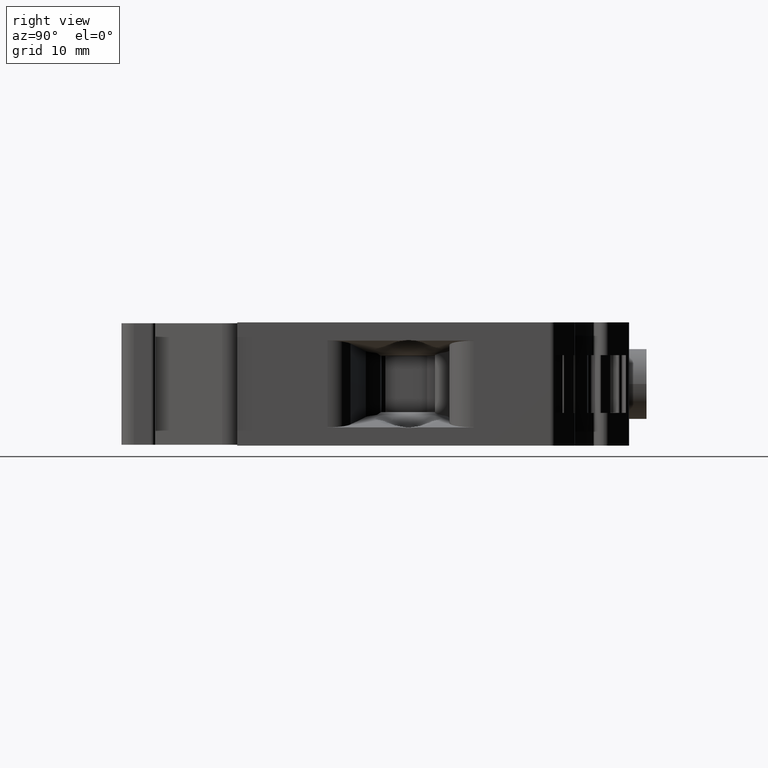
[diagram: clean part render]
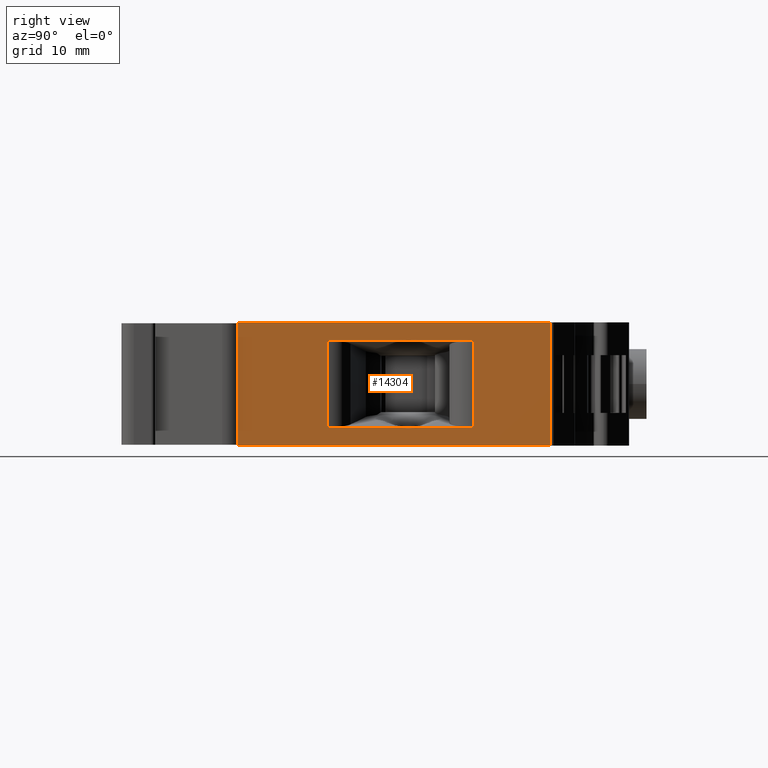
[diagram: same view with one face highlighted and labeled with its STEP entity id]
A machine part, right view. The second image highlights one B-rep face of the part: STEP entity #14304.
In plain terms, the highlighted planar face has unit normal (-1, 0, 0).
Its self-contained STEP definition (entity closure, byte-faithful):
#12 = EDGE_CURVE ( 'NONE', #8214, #5223, #862, .T. ) ;
#18 = EDGE_CURVE ( 'NONE', #5257, #5506, #847, .T. ) ;
#71 = CARTESIAN_POINT ( 'NONE',  ( 38.43667272264152500, -76.48721880784488300, -99.05621712428889200 ) ) ;
#103 = CARTESIAN_POINT ( 'NONE',  ( 38.43667272263122900, -58.75693856437533200, -109.5341536658698500 ) ) ;
#118 = CARTESIAN_POINT ( 'NONE',  ( 38.43667272264758600, -87.38320129209705600, -96.94730660721299400 ) ) ;
#138 = CARTESIAN_POINT ( 'NONE',  ( 38.43667272263061800, -76.48721880784488300, -109.5341536596334000 ) ) ;
#139 = CARTESIAN_POINT ( 'NONE',  ( 38.43667272264669800, -87.38320129209705600, -96.84730660721318400 ) ) ;
#168 = CARTESIAN_POINT ( 'NONE',  ( 38.43667272262924000, -49.52627389119648900, -111.7430641829503100 ) ) ;
#171 = CARTESIAN_POINT ( 'NONE',  ( 38.43667272264213600, -58.75693856437533200, -99.05621713051509400 ) ) ;
#185 = CARTESIAN_POINT ( 'NONE',  ( 38.43667272263490300, -87.38320129209705600, -111.7430641829508300 ) ) ;
#735 = CARTESIAN_POINT ( 'NONE',  ( 38.43667272211804000, -68.01573026067069300, -109.5341536729088100 ) ) ;
#757 = CARTESIAN_POINT ( 'NONE',  ( 38.43667272263975600, -87.38320129208365500, -111.6451853950825600 ) ) ;
#775 = CARTESIAN_POINT ( 'NONE',  ( 38.43667272212755400, -68.01573026067056600, -99.05621711726023200 ) ) ;
#799 = CARTESIAN_POINT ( 'NONE',  ( 38.43667272211812500, -65.38111280548901000, -109.5341536729089400 ) ) ;
#831 = CARTESIAN_POINT ( 'NONE',  ( 38.43667272212759700, -65.38111280548882600, -99.05621711726023200 ) ) ;
#847 = B_SPLINE_CURVE_WITH_KNOTS ( 'NONE', 3,
 ( #2164, #2183, #2150, #2144, #2182, #2149 ),
 .UNSPECIFIED., .F., .F.,
 ( 4, 2, 4 ),
 ( 0.0000000000000000000, 0.0004968447502951007600, 0.0009936895005902015300 ),
 .UNSPECIFIED. ) ;
#862 = B_SPLINE_CURVE_WITH_KNOTS ( 'NONE', 3,
 ( #2119, #2132, #2125, #2134, #2109, #2092, #2135, #2100, #2095, #2136 ),
 .UNSPECIFIED., .F., .F.,
 ( 4, 3, 3, 4 ),
 ( 6.938893903907228400E-017, 0.0003879735545500761100, 0.0006907775027674054600, 0.0009939116172367232000 ),
 .UNSPECIFIED. ) ;
#1496 = FACE_OUTER_BOUND ( 'NONE', #10390, .T. ) ;
#1544 = CARTESIAN_POINT ( 'NONE',  ( 38.43667272263370900, -145.8095721211545900, -104.2951853950827000 ) ) ;
#1566 = PLANE ( 'NONE',  #7005 ) ;
#1568 = DIRECTION ( 'NONE',  ( -1.000000000000000000, 3.416319012622749800E-014, 1.041296064131780700E-012 ) ) ;
#1575 = FACE_BOUND ( 'NONE', #10406, .T. ) ;
#1584 = DIRECTION ( 'NONE',  ( 1.041296064131780700E-012, 0.0000000000000000000, 1.000000000000000000 ) ) ;
#2092 = CARTESIAN_POINT ( 'NONE',  ( 38.43667272264181600, -67.61188055256357600, -99.04520399348122300 ) ) ;
#2095 = CARTESIAN_POINT ( 'NONE',  ( 38.43667272264180200, -67.91470133025465800, -99.05620878832232300 ) ) ;
#2100 = CARTESIAN_POINT ( 'NONE',  ( 38.43667272264180200, -67.81365728805107600, -99.05373817760812500 ) ) ;
#2109 = CARTESIAN_POINT ( 'NONE',  ( 38.43667272264185200, -67.51111747136447100, -99.03912661771674700 ) ) ;
#2119 = CARTESIAN_POINT ( 'NONE',  ( 38.43667312166780200, -67.02339730214423200, -99.00515785714438300 ) ) ;
#2125 = CARTESIAN_POINT ( 'NONE',  ( 38.43667272264188000, -67.28140248388771700, -99.02339958798435800 ) ) ;
#2132 = CARTESIAN_POINT ( 'NONE',  ( 38.43667272264185200, -67.15247861638997100, -99.01308536090948600 ) ) ;
#2134 = CARTESIAN_POINT ( 'NONE',  ( 38.43667272264186600, -67.41042497757135300, -99.03223288448188600 ) ) ;
#2135 = CARTESIAN_POINT ( 'NONE',  ( 38.43667272264180900, -67.71271860068083000, -99.04946895726682500 ) ) ;
#2136 = CARTESIAN_POINT ( 'NONE',  ( 38.43667272212755400, -68.01573026067056600, -99.05621711726023200 ) ) ;
#2144 = CARTESIAN_POINT ( 'NONE',  ( 38.43667272264193000, -66.04299980945084800, -99.02917394507817100 ) ) ;
#2149 = CARTESIAN_POINT ( 'NONE',  ( 38.43667311491969900, -66.37344575109710800, -99.00515785793783200 ) ) ;
#2150 = CARTESIAN_POINT ( 'NONE',  ( 38.43667272264193000, -65.71232074972803600, -99.04946547917093400 ) ) ;
#2164 = CARTESIAN_POINT ( 'NONE',  ( 38.43667272212759700, -65.38111280548882600, -99.05621711726023200 ) ) ;
#2182 = CARTESIAN_POINT ( 'NONE',  ( 38.43667272264194400, -66.20809607022414400, -99.01531279290577500 ) ) ;
#2183 = CARTESIAN_POINT ( 'NONE',  ( 38.43667272264188000, -65.54679083841767800, -99.05620346333327600 ) ) ;
#2293 = DIRECTION ( 'NONE',  ( -1.041296064131780700E-012, -0.0000000000000000000, -1.000000000000000000 ) ) ;
#2323 = LINE ( 'NONE', #2324, #13660 ) ;
#2324 = CARTESIAN_POINT ( 'NONE',  ( 38.43667272263699900, -49.52627389119648900, -104.2951853950827000 ) ) ;
#2458 = LINE ( 'NONE', #2489, #12823 ) ;
#2478 = DIRECTION ( 'NONE',  ( -3.416319012622749800E-014, -1.000000000000000000, -2.859497606515931200E-030 ) ) ;
#2489 = CARTESIAN_POINT ( 'NONE',  ( 38.43667272264146800, -145.8095721211545900, -96.84730660721318400 ) ) ;
#2504 = DIRECTION ( 'NONE',  ( -3.416319012624204500E-014, -1.000000000000000000, -1.396799342856360700E-014 ) ) ;
#2509 = LINE ( 'NONE', #2514, #12852 ) ;
#2514 = CARTESIAN_POINT ( 'NONE',  ( 38.43667272262595000, -145.8095721211546200, -111.7430641829516600 ) ) ;
#2552 = CARTESIAN_POINT ( 'NONE',  ( 38.43667272264669800, -87.38320129209705600, -185.1101459997687200 ) ) ;
#2558 = LINE ( 'NONE', #2552, #12867 ) ;
#2560 = DIRECTION ( 'NONE',  ( -0.0000000000000000000, 0.0000000000000000000, 1.000000000000000000 ) ) ;
#2881 = CARTESIAN_POINT ( 'NONE',  ( 38.43667272263091700, -67.18874698519736900, -109.5750579983166800 ) ) ;
#2884 = CARTESIAN_POINT ( 'NONE',  ( 38.43667312166120800, -67.02339730214495700, -109.5852129330258900 ) ) ;
#2888 = CARTESIAN_POINT ( 'NONE',  ( 38.43667272263088800, -67.85005222558434900, -109.5341673268353600 ) ) ;
#2889 = CARTESIAN_POINT ( 'NONE',  ( 38.43667272263093800, -67.68452231211986700, -109.5409053111772800 ) ) ;
#2897 = CARTESIAN_POINT ( 'NONE',  ( 38.43667272263092400, -67.35384324810212300, -109.5611968457012000 ) ) ;
#2922 = CARTESIAN_POINT ( 'NONE',  ( 38.43667272211804000, -68.01573026067069300, -109.5341536729088100 ) ) ;
#3421 = CARTESIAN_POINT ( 'NONE',  ( 38.43667312166132200, -66.37344576401521600, -109.5852129330259100 ) ) ;
#3461 = CARTESIAN_POINT ( 'NONE',  ( 38.43667312166780200, -67.02339730214423200, -99.00515785714438300 ) ) ;
#3486 = CARTESIAN_POINT ( 'NONE',  ( 38.43667312166120800, -67.02339730214495700, -109.5852129330258900 ) ) ;
#3517 = CARTESIAN_POINT ( 'NONE',  ( 38.43667311491969900, -66.37344575109710800, -99.00515785793783200 ) ) ;
#3574 = CARTESIAN_POINT ( 'NONE',  ( 38.43667312803624000, -66.69842153307989500, -98.99518539509232100 ) ) ;
#3575 = CARTESIAN_POINT ( 'NONE',  ( 38.43667272264475800, -49.52627389119648900, -96.84730660721318400 ) ) ;
#3616 = EDGE_CURVE ( 'NONE', #5470, #5389, #2323, .T. ) ;
#3667 = EDGE_CURVE ( 'NONE', #5470, #5360, #2458, .T. ) ;
#3686 = EDGE_CURVE ( 'NONE', #5389, #5396, #2509, .T. ) ;
#3693 = EDGE_CURVE ( 'NONE', #5347, #5360, #2558, .T. ) ;
#5174 = VERTEX_POINT ( 'NONE', #735 ) ;
#5211 = VERTEX_POINT ( 'NONE', #757 ) ;
#5223 = VERTEX_POINT ( 'NONE', #775 ) ;
#5242 = VERTEX_POINT ( 'NONE', #799 ) ;
#5257 = VERTEX_POINT ( 'NONE', #831 ) ;
#5305 = VERTEX_POINT ( 'NONE', #71 ) ;
#5347 = VERTEX_POINT ( 'NONE', #118 ) ;
#5348 = VERTEX_POINT ( 'NONE', #103 ) ;
#5360 = VERTEX_POINT ( 'NONE', #139 ) ;
#5383 = VERTEX_POINT ( 'NONE', #138 ) ;
#5389 = VERTEX_POINT ( 'NONE', #168 ) ;
#5396 = VERTEX_POINT ( 'NONE', #185 ) ;
#5414 = VERTEX_POINT ( 'NONE', #171 ) ;
#5470 = VERTEX_POINT ( 'NONE', #3575 ) ;
#5492 = VERTEX_POINT ( 'NONE', #3574 ) ;
#5506 = VERTEX_POINT ( 'NONE', #3517 ) ;
#7005 = AXIS2_PLACEMENT_3D ( 'NONE', #1544, #1568, #1584 ) ;
#7387 = AXIS2_PLACEMENT_3D ( 'NONE', #11906, #11903, #11904 ) ;
#7406 = CIRCLE ( 'NONE', #7408, 5.299999999999998900 ) ;
#7408 = AXIS2_PLACEMENT_3D ( 'NONE', #11936, #11944, #11947 ) ;
#7414 = VECTOR ( 'NONE', #11240, 1000.000000000000000 ) ;
#7415 = CIRCLE ( 'NONE', #7387, 5.299999999999998900 ) ;
#7420 = VECTOR ( 'NONE', #11298, 1000.000000000000000 ) ;
#7469 = VECTOR ( 'NONE', #11312, 1000.000000000000000 ) ;
#7475 = VECTOR ( 'NONE', #11279, 1000.000000000000000 ) ;
#7488 = VECTOR ( 'NONE', #11237, 1000.000000000000000 ) ;
#7529 = VECTOR ( 'NONE', #11371, 1000.000000000000000 ) ;
#7590 = VECTOR ( 'NONE', #11414, 1000.000000000000000 ) ;
#7602 = VECTOR ( 'NONE', #11393, 1000.000000000000000 ) ;
#8164 = VERTEX_POINT ( 'NONE', #3421 ) ;
#8214 = VERTEX_POINT ( 'NONE', #3461 ) ;
#8223 = VERTEX_POINT ( 'NONE', #3486 ) ;
#8294 = ORIENTED_EDGE ( 'NONE', *, *, #17372, .F. ) ;
#8295 = ORIENTED_EDGE ( 'NONE', *, *, #3686, .F. ) ;
#8298 = ORIENTED_EDGE ( 'NONE', *, *, #17417, .F. ) ;
#8307 = ORIENTED_EDGE ( 'NONE', *, *, #17383, .F. ) ;
#8309 = ORIENTED_EDGE ( 'NONE', *, *, #17369, .F. ) ;
#8319 = ORIENTED_EDGE ( 'NONE', *, *, #17371, .F. ) ;
#8339 = ORIENTED_EDGE ( 'NONE', *, *, #17414, .F. ) ;
#8340 = ORIENTED_EDGE ( 'NONE', *, *, #3616, .F. ) ;
#8341 = ORIENTED_EDGE ( 'NONE', *, *, #17498, .T. ) ;
#8344 = ORIENTED_EDGE ( 'NONE', *, *, #18, .F. ) ;
#8354 = ORIENTED_EDGE ( 'NONE', *, *, #12, .F. ) ;
#8357 = ORIENTED_EDGE ( 'NONE', *, *, #11681, .T. ) ;
#8360 = ORIENTED_EDGE ( 'NONE', *, *, #17512, .T. ) ;
#8363 = ORIENTED_EDGE ( 'NONE', *, *, #3693, .F. ) ;
#8368 = ORIENTED_EDGE ( 'NONE', *, *, #17730, .F. ) ;
#8371 = ORIENTED_EDGE ( 'NONE', *, *, #17752, .F. ) ;
#8384 = ORIENTED_EDGE ( 'NONE', *, *, #3667, .T. ) ;
#8392 = ORIENTED_EDGE ( 'NONE', *, *, #17403, .F. ) ;
#8401 = ORIENTED_EDGE ( 'NONE', *, *, #17366, .F. ) ;
#10390 = EDGE_LOOP ( 'NONE', ( #8319, #8307, #8295, #8340, #8384, #8363 ) ) ;
#10406 = EDGE_LOOP ( 'NONE', ( #8371, #8298, #8294, #8392, #8354, #8341, #8357, #8344, #8309, #8339, #8401, #8368, #8360 ) ) ;
#11224 = LINE ( 'NONE', #11225, #7414 ) ;
#11225 = CARTESIAN_POINT ( 'NONE',  ( 38.43667272263915900, -145.8095721211545900, -99.05621713000221000 ) ) ;
#11237 = DIRECTION ( 'NONE',  ( 3.416319012622749800E-014, 1.000000000000000000, -3.557399541662640600E-026 ) ) ;
#11238 = LINE ( 'NONE', #11274, #7469 ) ;
#11240 = DIRECTION ( 'NONE',  ( -3.416319012622749800E-014, -1.000000000000000000, 3.557399541662640600E-026 ) ) ;
#11242 = LINE ( 'NONE', #11307, #7475 ) ;
#11252 = CARTESIAN_POINT ( 'NONE',  ( 38.43667272262825200, -145.8095721211545900, -109.5341536726195000 ) ) ;
#11259 = LINE ( 'NONE', #11252, #7488 ) ;
#11274 = CARTESIAN_POINT ( 'NONE',  ( 38.43667272263570600, -87.38320129209705600, -104.2951853950827000 ) ) ;
#11279 = DIRECTION ( 'NONE',  ( -1.041296064131780700E-012, -0.0000000000000000000, -1.000000000000000000 ) ) ;
#11289 = CARTESIAN_POINT ( 'NONE',  ( 38.43667272263490300, -87.38320129209705600, -185.1101459997687200 ) ) ;
#11298 = DIRECTION ( 'NONE',  ( -0.0000000000000000000, 0.0000000000000000000, 1.000000000000000000 ) ) ;
#11307 = CARTESIAN_POINT ( 'NONE',  ( 38.43667272263607500, -76.48721880784488300, -104.2951853950827000 ) ) ;
#11311 = LINE ( 'NONE', #11289, #7420 ) ;
#11312 = DIRECTION ( 'NONE',  ( 1.041296064131780700E-012, 0.0000000000000000000, 1.000000000000000000 ) ) ;
#11360 = LINE ( 'NONE', #11361, #7602 ) ;
#11361 = CARTESIAN_POINT ( 'NONE',  ( 38.43667272263915900, -145.8095721211545900, -99.05621711754945100 ) ) ;
#11365 = LINE ( 'NONE', #11370, #7529 ) ;
#11370 = CARTESIAN_POINT ( 'NONE',  ( 38.43667272263668600, -58.75693856437533200, -104.2951853950827000 ) ) ;
#11371 = DIRECTION ( 'NONE',  ( 1.041296064131780700E-012, 0.0000000000000000000, 1.000000000000000000 ) ) ;
#11393 = DIRECTION ( 'NONE',  ( -3.416319012622749800E-014, -1.000000000000000000, 3.557399541662640600E-026 ) ) ;
#11414 = DIRECTION ( 'NONE',  ( 3.416319012622749800E-014, 1.000000000000000000, -3.557399541662640600E-026 ) ) ;
#11438 = LINE ( 'NONE', #11446, #7590 ) ;
#11446 = CARTESIAN_POINT ( 'NONE',  ( 38.43667272262825200, -145.8095721211545900, -109.5341536601469100 ) ) ;
#11681 = EDGE_CURVE ( 'NONE', #5492, #5506, #13350, .T. ) ;
#11903 = DIRECTION ( 'NONE',  ( -1.000000000000000000, 7.999495554144750400E-027, 4.551851320108999600E-013 ) ) ;
#11904 = DIRECTION ( 'NONE',  ( 4.556103921810784300E-013, 0.0000000000000000000, 1.000000000000000000 ) ) ;
#11906 = CARTESIAN_POINT ( 'NONE',  ( 38.43667312803382400, -66.69842153307989500, -104.2951853950923200 ) ) ;
#11936 = CARTESIAN_POINT ( 'NONE',  ( 38.43667312803034300, -66.69842153307989500, -104.2951853950779900 ) ) ;
#11944 = DIRECTION ( 'NONE',  ( -1.000000000000000000, 0.0000000000000000000, 0.0000000000000000000 ) ) ;
#11947 = DIRECTION ( 'NONE',  ( 0.0000000000000000000, 0.0000000000000000000, 1.000000000000000000 ) ) ;
#12685 = CARTESIAN_POINT ( 'NONE',  ( 38.43667272263091700, -66.24436444976952000, -109.5772854292605000 ) ) ;
#12690 = CARTESIAN_POINT ( 'NONE',  ( 38.43667272263093800, -66.11544058227231300, -109.5669712021779800 ) ) ;
#12706 = CARTESIAN_POINT ( 'NONE',  ( 38.43667272263096600, -65.88572559479577300, -109.5512441724427100 ) ) ;
#12707 = CARTESIAN_POINT ( 'NONE',  ( 38.43667272263097300, -65.78496251359659700, -109.5451667966790400 ) ) ;
#12708 = CARTESIAN_POINT ( 'NONE',  ( 38.43667272263098100, -65.68412446547930000, -109.5409018328952200 ) ) ;
#12709 = CARTESIAN_POINT ( 'NONE',  ( 38.43667272263098800, -65.58318577810884200, -109.5366326125556800 ) ) ;
#12712 = CARTESIAN_POINT ( 'NONE',  ( 38.43667312166132200, -66.37344576401521600, -109.5852129330259100 ) ) ;
#12722 = CARTESIAN_POINT ( 'NONE',  ( 38.43667272263095200, -65.98641808858877800, -109.5581379056788200 ) ) ;
#12724 = CARTESIAN_POINT ( 'NONE',  ( 38.43667272263097300, -65.48214173590506000, -109.5341620018440800 ) ) ;
#12728 = CARTESIAN_POINT ( 'NONE',  ( 38.43667272211812500, -65.38111280548901000, -109.5341536729089400 ) ) ;
#12823 = VECTOR ( 'NONE', #2478, 1000.000000000000000 ) ;
#12852 = VECTOR ( 'NONE', #2504, 1000.000000000000000 ) ;
#12867 = VECTOR ( 'NONE', #2560, 1000.000000000000000 ) ;
#13335 = AXIS2_PLACEMENT_3D ( 'NONE', #14475, #14493, #14479 ) ;
#13350 = CIRCLE ( 'NONE', #13335, 5.299999999999998900 ) ;
#13660 = VECTOR ( 'NONE', #2293, 1000.000000000000000 ) ;
#14304 = ADVANCED_FACE ( 'NONE', ( #1575, #1496 ), #1566, .F. ) ;
#14475 = CARTESIAN_POINT ( 'NONE',  ( 38.43667312803382400, -66.69842153307989500, -104.2951853950923200 ) ) ;
#14479 = DIRECTION ( 'NONE',  ( 4.556103921810784300E-013, 0.0000000000000000000, 1.000000000000000000 ) ) ;
#14493 = DIRECTION ( 'NONE',  ( -1.000000000000000000, 7.999495554144750400E-027, 4.551851320108999600E-013 ) ) ;
#16997 = B_SPLINE_CURVE_WITH_KNOTS ( 'NONE', 3,
 ( #2922, #2888, #2889, #2897, #2881, #2884 ),
 .UNSPECIFIED., .F., .F.,
 ( 4, 2, 4 ),
 ( 1.387778780781445700E-017, 0.0004968447567650640000, 0.0009936895135301141200 ),
 .UNSPECIFIED. ) ;
#17007 = B_SPLINE_CURVE_WITH_KNOTS ( 'NONE', 3,
 ( #12712, #12685, #12690, #12722, #12706, #12707, #12708, #12709, #12724, #12728 ),
 .UNSPECIFIED., .F., .F.,
 ( 4, 3, 3, 4 ),
 ( 2.775557561562891000E-017, 0.0003879735545500698800, 0.0006907775027673761800, 0.0009939116172371356300 ),
 .UNSPECIFIED. ) ;
#17366 = EDGE_CURVE ( 'NONE', #5242, #5348, #11259, .T. ) ;
#17369 = EDGE_CURVE ( 'NONE', #5414, #5257, #11224, .T. ) ;
#17371 = EDGE_CURVE ( 'NONE', #5211, #5347, #11238, .T. ) ;
#17372 = EDGE_CURVE ( 'NONE', #5305, #5383, #11242, .T. ) ;
#17383 = EDGE_CURVE ( 'NONE', #5396, #5211, #11311, .T. ) ;
#17403 = EDGE_CURVE ( 'NONE', #5223, #5305, #11360, .T. ) ;
#17414 = EDGE_CURVE ( 'NONE', #5348, #5414, #11365, .T. ) ;
#17417 = EDGE_CURVE ( 'NONE', #5383, #5174, #11438, .T. ) ;
#17498 = EDGE_CURVE ( 'NONE', #8214, #5492, #7415, .T. ) ;
#17512 = EDGE_CURVE ( 'NONE', #8164, #8223, #7406, .T. ) ;
#17730 = EDGE_CURVE ( 'NONE', #8164, #5242, #17007, .T. ) ;
#17752 = EDGE_CURVE ( 'NONE', #5174, #8223, #16997, .T. ) ;